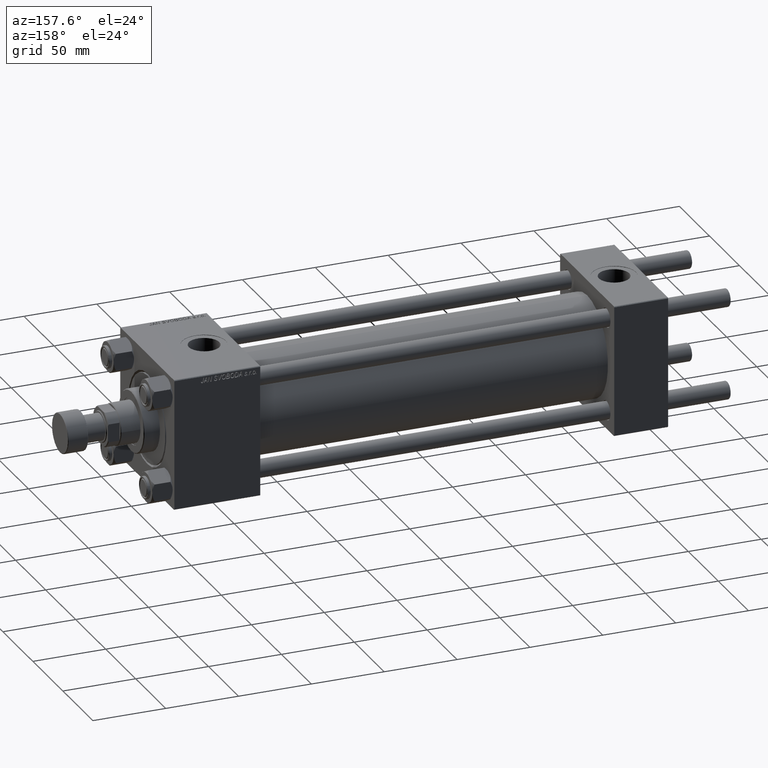
[diagram: clean part render]
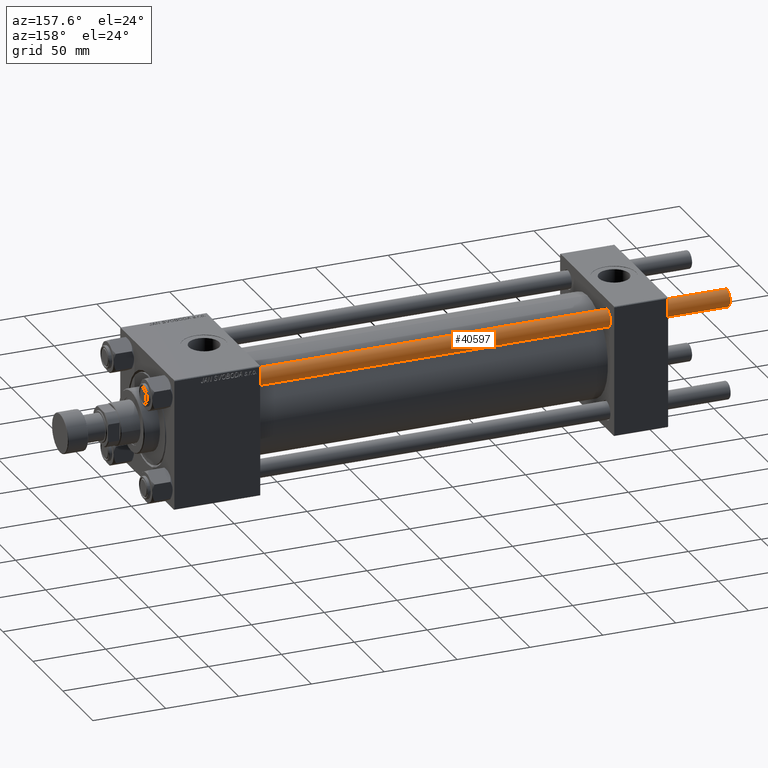
[diagram: same view with one face highlighted and labeled with its STEP entity id]
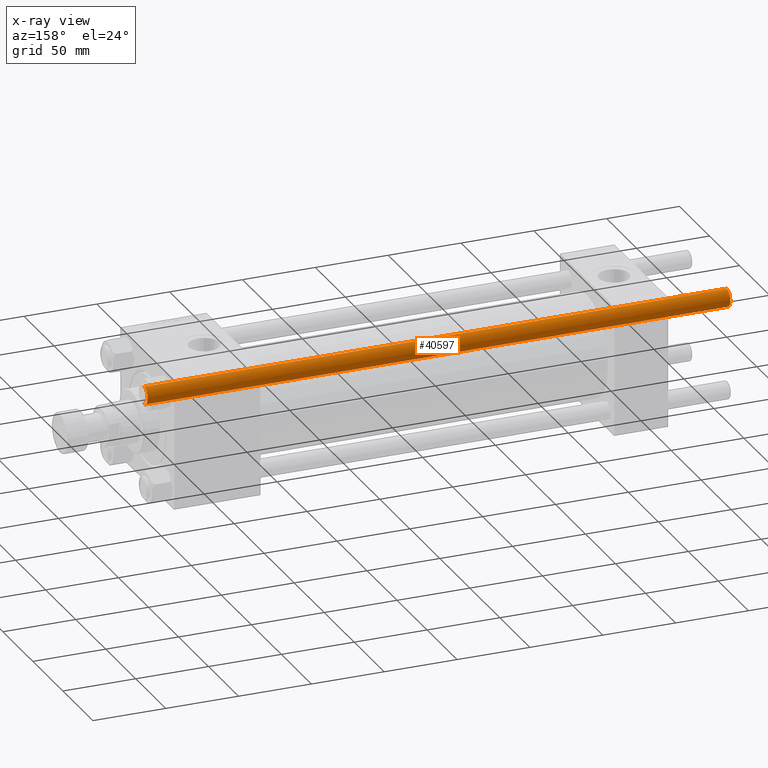
[diagram: x-ray of the same camera — body ghosted, the highlighted face saturated]
A machine part, auxiliary view. The second image highlights one B-rep face of the part: STEP entity #40597.
The next image is the same camera in x-ray: the body ghosted, the highlighted face saturated — about 0% of this face is hidden behind the body in this view.
In plain terms, the highlighted cylindrical surface (edge-blend (fillet) strip) has radius 6 mm, axis along (-1, -0, -0).
Its self-contained STEP definition (entity closure, byte-faithful):
#3082 = CARTESIAN_POINT ( 'NONE',  ( -6.000000000000000888, 0.000000000000000000, 400.5000000000003411 ) ) ;
#4429 = DIRECTION ( 'NONE',  ( -0.000000000000000000, -0.000000000000000000, -1.000000000000000000 ) ) ;
#4678 = CYLINDRICAL_SURFACE ( 'NONE', #41329, 6.000000000000000888 ) ;
#5445 = FACE_OUTER_BOUND ( 'NONE', #45523, .T. ) ;
#6332 = CARTESIAN_POINT ( 'NONE',  ( -6.000000000000000888, 0.000000000000000000, 0.5000000000003335110 ) ) ;
#8465 = CARTESIAN_POINT ( 'NONE',  ( 6.000000000000000888, 7.347880794884119736E-16, 400.5000000000003411 ) ) ;
#8664 = ORIENTED_EDGE ( 'NONE', *, *, #40591, .F. ) ;
#8765 = VERTEX_POINT ( 'NONE', #8465 ) ;
#9721 = DIRECTION ( 'NONE',  ( 1.000000000000000000, 0.000000000000000000, 0.000000000000000000 ) ) ;
#12865 = DIRECTION ( 'NONE',  ( -1.000000000000000000, 0.000000000000000000, 0.000000000000000000 ) ) ;
#13042 = CARTESIAN_POINT ( 'NONE',  ( 0.000000000000000000, 0.000000000000000000, 400.5000000000003411 ) ) ;
#15191 = VECTOR ( 'NONE', #4429, 1000.000000000000000 ) ;
#16002 = EDGE_CURVE ( 'NONE', #8765, #45157, #32456, .T. ) ;
#16087 = DIRECTION ( 'NONE',  ( -0.000000000000000000, -0.000000000000000000, -1.000000000000000000 ) ) ;
#16573 = DIRECTION ( 'NONE',  ( -0.000000000000000000, -0.000000000000000000, -1.000000000000000000 ) ) ;
#16591 = CARTESIAN_POINT ( 'NONE',  ( 6.000000000000000888, 7.347880794884119736E-16, 401.0000000000000000 ) ) ;
#17331 = ORIENTED_EDGE ( 'NONE', *, *, #16002, .T. ) ;
#19074 = AXIS2_PLACEMENT_3D ( 'NONE', #44919, #37486, #9721 ) ;
#19855 = ORIENTED_EDGE ( 'NONE', *, *, #21434, .T. ) ;
#20811 = CARTESIAN_POINT ( 'NONE',  ( 0.000000000000000000, 0.000000000000000000, 401.0000000000000000 ) ) ;
#21434 = EDGE_CURVE ( 'NONE', #45157, #32118, #51165, .T. ) ;
#28716 = CIRCLE ( 'NONE', #33796, 6.000000000000000888 ) ;
#29095 = VECTOR ( 'NONE', #16087, 1000.000000000000000 ) ;
#29165 = DIRECTION ( 'NONE',  ( 0.000000000000000000, 0.000000000000000000, -1.000000000000000000 ) ) ;
#30149 = ORIENTED_EDGE ( 'NONE', *, *, #46934, .T. ) ;
#31674 = VERTEX_POINT ( 'NONE', #3082 ) ;
#32118 = VERTEX_POINT ( 'NONE', #6332 ) ;
#32456 = LINE ( 'NONE', #16591, #29095 ) ;
#33796 = AXIS2_PLACEMENT_3D ( 'NONE', #13042, #29165, #41857 ) ;
#37021 = CARTESIAN_POINT ( 'NONE',  ( 6.000000000000000888, 7.347880794884119736E-16, 0.5000000000003335110 ) ) ;
#37486 = DIRECTION ( 'NONE',  ( -0.000000000000000000, -0.000000000000000000, 1.000000000000000000 ) ) ;
#40591 = EDGE_CURVE ( 'NONE', #31674, #32118, #41405, .T. ) ;
#40597 = ADVANCED_FACE ( 'NONE', ( #5445 ), #4678, .T. ) ;
#41329 = AXIS2_PLACEMENT_3D ( 'NONE', #20811, #16573, #12865 ) ;
#41405 = LINE ( 'NONE', #49104, #15191 ) ;
#41857 = DIRECTION ( 'NONE',  ( 1.000000000000000000, 0.000000000000000000, 0.000000000000000000 ) ) ;
#44919 = CARTESIAN_POINT ( 'NONE',  ( 0.000000000000000000, 0.000000000000000000, 0.5000000000003335110 ) ) ;
#45157 = VERTEX_POINT ( 'NONE', #37021 ) ;
#45523 = EDGE_LOOP ( 'NONE', ( #30149, #17331, #19855, #8664 ) ) ;
#46934 = EDGE_CURVE ( 'NONE', #31674, #8765, #28716, .T. ) ;
#49104 = CARTESIAN_POINT ( 'NONE',  ( -6.000000000000000888, 0.000000000000000000, 401.0000000000000000 ) ) ;
#51165 = CIRCLE ( 'NONE', #19074, 6.000000000000000888 ) ;